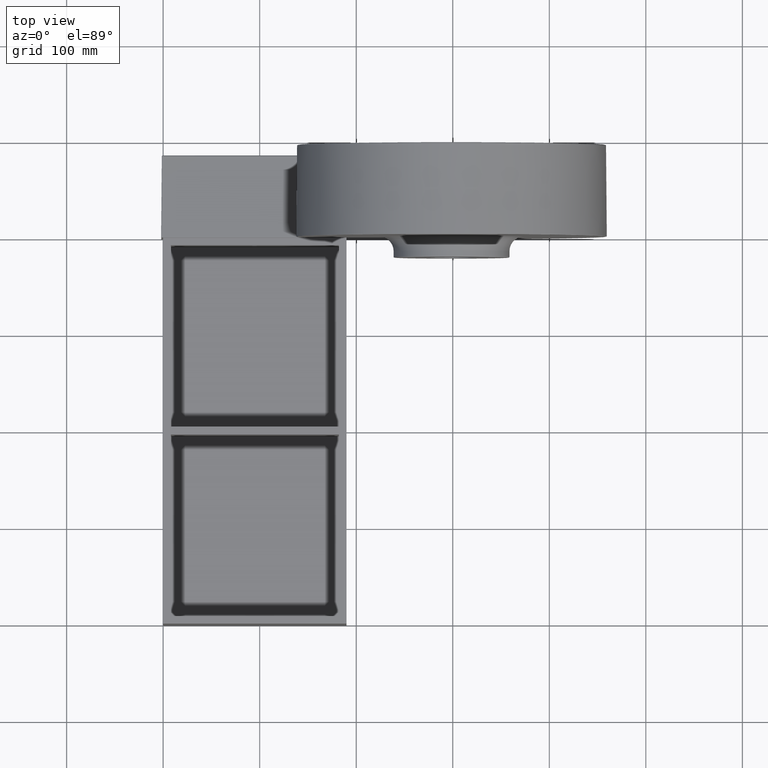
[diagram: clean part render]
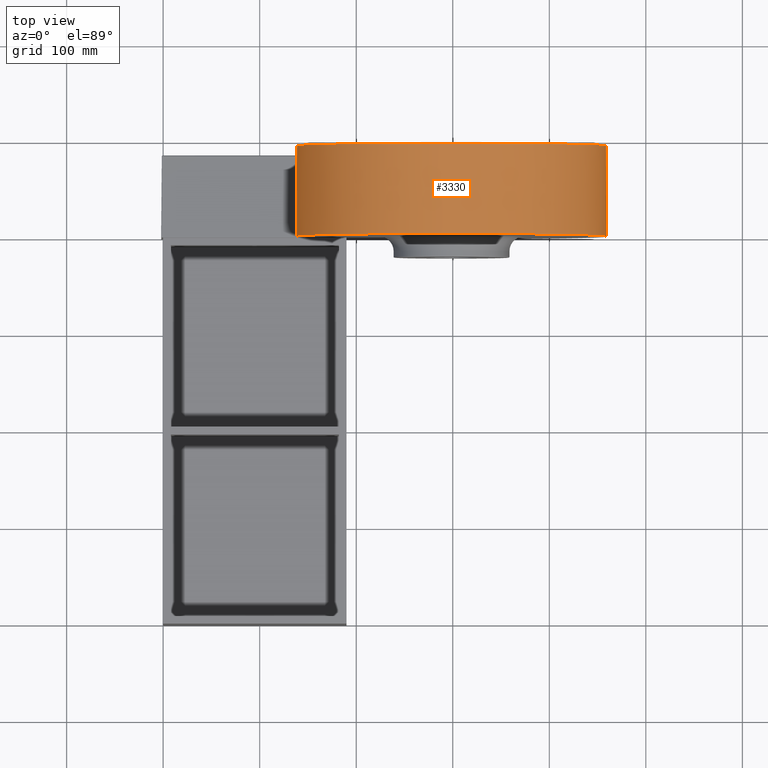
[diagram: same view with one face highlighted and labeled with its STEP entity id]
A machine part, top view. The second image highlights one B-rep face of the part: STEP entity #3330.
In plain terms, the highlighted conical surface has half-angle 0.5 deg.
Its self-contained STEP definition (entity closure, byte-faithful):
#180 = EDGE_CURVE ( 'NONE', #10618, #819, #2144, .T. ) ;
#267 = EDGE_CURVE ( 'NONE', #10618, #8821, #6400, .T. ) ;
#554 = ORIENTED_EDGE ( 'NONE', *, *, #11295, .F. ) ;
#819 = VERTEX_POINT ( 'NONE', #7086 ) ;
#1102 = DIRECTION ( 'NONE',  ( 1.000000000000000000, 0.0000000000000000000, 0.0000000000000000000 ) ) ;
#1382 = DIRECTION ( 'NONE',  ( 0.008726535498366154442, -0.9999619230641713097, -1.068692376572001036E-18 ) ) ;
#1437 = CARTESIAN_POINT ( 'NONE',  ( 458.7417837622144248, 494.0086265354983084, 55.99999999999997158 ) ) ;
#1706 = ORIENTED_EDGE ( 'NONE', *, *, #180, .F. ) ;
#1828 = VECTOR ( 'NONE', #10332, 1000.000000000000227 ) ;
#1864 = ORIENTED_EDGE ( 'NONE', *, *, #267, .T. ) ;
#1904 = ORIENTED_EDGE ( 'NONE', *, *, #5599, .T. ) ;
#2079 = CARTESIAN_POINT ( 'NONE',  ( 138.7417837622145385, 494.0086265354983084, 55.99999999999999289 ) ) ;
#2144 = LINE ( 'NONE', #1437, #9563 ) ;
#2655 = CIRCLE ( 'NONE', #4108, 160.8160002160960005 ) ;
#3330 = ADVANCED_FACE ( 'NONE', ( #6549 ), #6192, .T. ) ;
#4108 = AXIS2_PLACEMENT_3D ( 'NONE', #5466, #9057, #1102 ) ;
#4537 = VERTEX_POINT ( 'NONE', #6790 ) ;
#4877 = DIRECTION ( 'NONE',  ( 1.000000000000000000, 0.0000000000000000000, 0.0000000000000000000 ) ) ;
#5231 = EDGE_LOOP ( 'NONE', ( #1706, #1864, #1904, #554 ) ) ;
#5296 = DIRECTION ( 'NONE',  ( -1.214623636765614367E-16, -1.000000000000000000, -0.0000000000000000000 ) ) ;
#5351 = CARTESIAN_POINT ( 'NONE',  ( 298.7417837622144816, 494.0086265354983084, 55.99999999999999289 ) ) ;
#5466 = CARTESIAN_POINT ( 'NONE',  ( 298.7417837622144816, 400.5042632677491952, 55.99999999999999289 ) ) ;
#5599 = EDGE_CURVE ( 'NONE', #8821, #4537, #10367, .T. ) ;
#6192 = CONICAL_SURFACE ( 'NONE', #11073, 159.9999999999999432, 0.008726646259963988933 ) ;
#6333 = DIRECTION ( 'NONE',  ( -1.000000000000000000, 0.0000000000000000000, 0.0000000000000000000 ) ) ;
#6400 = CIRCLE ( 'NONE', #11281, 159.9999999999999147 ) ;
#6452 = DIRECTION ( 'NONE',  ( -1.214623636765614367E-16, -1.000000000000000000, 0.0000000000000000000 ) ) ;
#6506 = CARTESIAN_POINT ( 'NONE',  ( 298.7417837622144816, 494.0086265354983084, 55.99999999999999289 ) ) ;
#6549 = FACE_OUTER_BOUND ( 'NONE', #5231, .T. ) ;
#6790 = CARTESIAN_POINT ( 'NONE',  ( 137.9257835461185380, 400.5042632677492520, 55.99999999999997158 ) ) ;
#7086 = CARTESIAN_POINT ( 'NONE',  ( 459.5577839783105105, 400.5042632677491952, 55.99999999999999289 ) ) ;
#8821 = VERTEX_POINT ( 'NONE', #2079 ) ;
#9057 = DIRECTION ( 'NONE',  ( -1.214623636765614367E-16, -1.000000000000000000, -0.0000000000000000000 ) ) ;
#9563 = VECTOR ( 'NONE', #1382, 1000.000000000000227 ) ;
#9936 = CARTESIAN_POINT ( 'NONE',  ( 458.7417837622144248, 494.0086265354983084, 55.99999999999997158 ) ) ;
#10332 = DIRECTION ( 'NONE',  ( -0.008726535498366397303, -0.9999619230641713097, 0.0000000000000000000 ) ) ;
#10355 = CARTESIAN_POINT ( 'NONE',  ( 138.7417837622145385, 494.0086265354983084, 55.99999999999999289 ) ) ;
#10367 = LINE ( 'NONE', #10355, #1828 ) ;
#10618 = VERTEX_POINT ( 'NONE', #9936 ) ;
#11073 = AXIS2_PLACEMENT_3D ( 'NONE', #6506, #6452, #6333 ) ;
#11281 = AXIS2_PLACEMENT_3D ( 'NONE', #5351, #5296, #4877 ) ;
#11295 = EDGE_CURVE ( 'NONE', #819, #4537, #2655, .T. ) ;